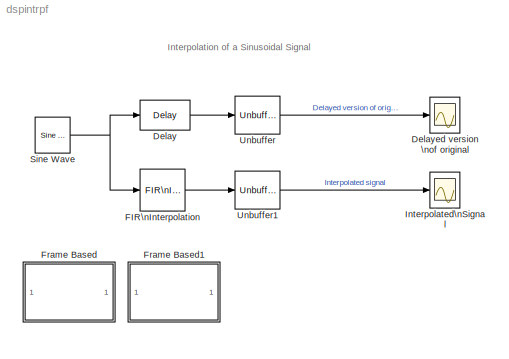
MODEL dspintrpf
KIND model
BLOCK [Reference] Delay  REF=dspsigops/Delay
  Ports = [1, 1]
  SourceBlock = dspsigops/Delay
  SourceType = Delay
  delay = 9
  dif_ic_for_ch = off
  dif_ic_for_dly = off
  dly_unit = Samples
  ic = 0
  ic_detail = on
  reset_popup = None
BLOCK [Scope] Delayed version \nof original
  DataFormat = Array
  NumInputPorts = 1
  Ports = [1]
  TickLabels = on
  YMax = 1.2
  YMin = -1.2
  ZoomMode = xonly
BLOCK [Reference] FIR\nInterpolation  REF=dspmlti3/FIR\nInterpolation
  L = 9
  Ports = [1, 1]
  SourceBlock = dspmlti3/FIR\nInterpolation
  SourceType = FIR Interpolation
  accumFracLength = 30
  accumMode = Same as product output
  accumWordLength = 32
  additionalParams = off
  allowOverrides = on
  firstCoeffFracLength = 15
  firstCoeffMode = Same word length as input
  firstCoeffWordLength = 16
  framing = Maintain input frame size
  h = intfilt(9, 9, .5)
  outputBufInitCond = 0
  outputFracLength = 15
  outputMode = Same as input
  outputWordLength = 16
  overflowMode = off
  prodOutputFracLength = 30
  prodOutputMode = Same as input
  prodOutputWordLength = 32
  roundingMode = Floor
BLOCK [SubSystem] Frame Based
  MaskDisplay = disp('Sample-based\\nVersion')
  MaskIconFrame = on
  MaskIconOpaque = on
  MaskIconRotate = none
  MaskIconUnits = autoscale
  OpenFcn = dspintrp
  Ports = []
  TreatAsAtomicUnit = off
BLOCK [SubSystem] Frame Based1
  MaskDisplay = disp('Fixed-point\\nVersion')
  MaskIconFrame = on
  MaskIconOpaque = on
  MaskIconRotate = none
  MaskIconUnits = autoscale
  OpenFcn = dspintrpfp
  Ports = []
  TreatAsAtomicUnit = off
BLOCK [Scope] Interpolated\nSignal
  DataFormat = Array
  NumInputPorts = 1
  Ports = [1]
  SaveName = ScopeData1
  TickLabels = on
  YMax = 1.2
  YMin = -1.2
  ZoomMode = xonly
BLOCK [Reference] Sine Wave  REF=dspsrcs4/Sine Wave
  Amplitude = 1
  CompMethod = Trigonometric fcn
  Frequency = 0.2
  OutComplex = Real
  Phase = 0.7
  Ports = [0, 1]
  ResetState = Restart at time zero
  SampleMode = Discrete
  SampleTime = 1
  SamplesPerFrame = 32
  SourceBlock = dspsrcs4/Sine Wave
  SourceType = Sine Wave
  TableSize = Speed
  additionalParams = off
  allowOverrides = on
  dataType = double
  fracBitsMode = Best precision
  numFracBits = 15
  udDataType = sfix(16)
  wordLen = 16
BLOCK [Reference] Unbuffer  REF=dspbuff3/Unbuffer
  Ports = [1, 1]
  SourceBlock = dspbuff3/Unbuffer
  SourceType = Unbuffer
  ic = 0
BLOCK [Reference] Unbuffer1  REF=dspbuff3/Unbuffer
  Ports = [1, 1]
  SourceBlock = dspbuff3/Unbuffer
  SourceType = Unbuffer
  ic = 0
ANNOTATION (root): Interpolation of a Sinusoidal Signal
LINE Delay:1 -> Unbuffer:1
LINE FIR\nInterpolation:1 -> Unbuffer1:1
NET Sine Wave:1 -> Delay:1, FIR\nInterpolation:1
LINE Unbuffer1:1 -> Interpolated\nSignal:1
LINE Unbuffer:1 -> Delayed version \nof original:1
note: NET lines group one-source signal fan-out (src -> all destinations, sorted); 1:1 wires keep LINE
